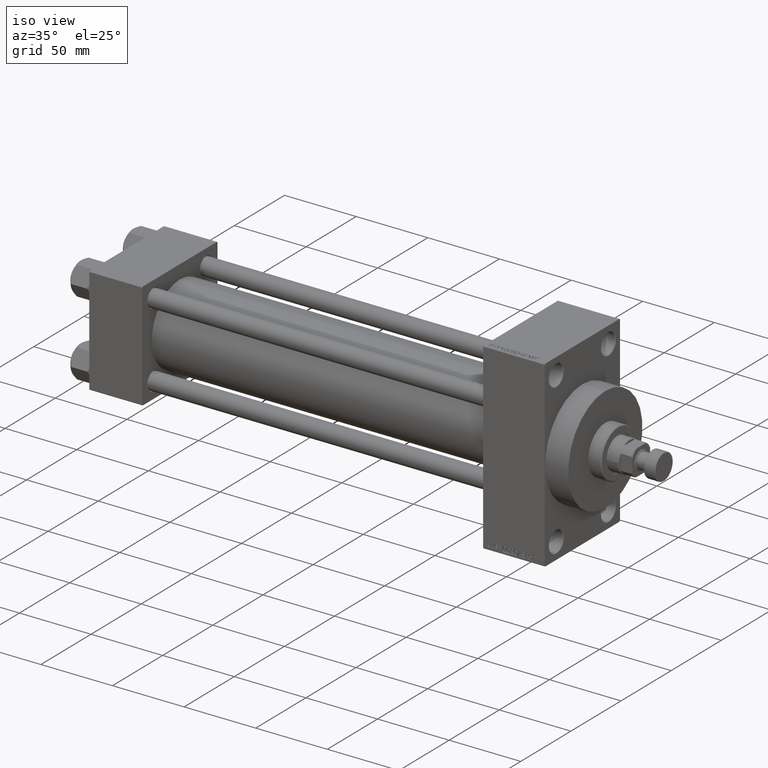
[diagram: clean part render]
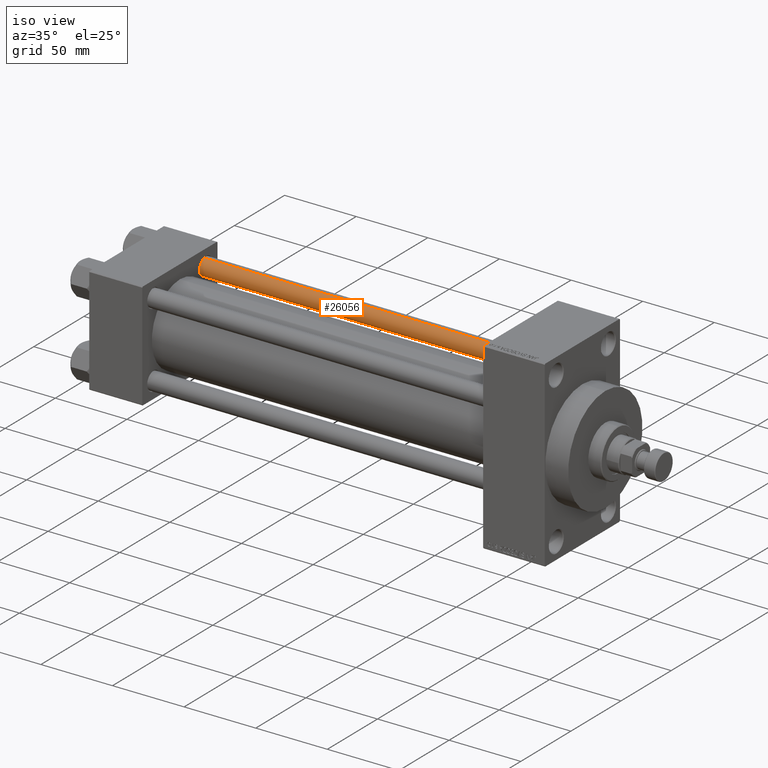
[diagram: same view with one face highlighted and labeled with its STEP entity id]
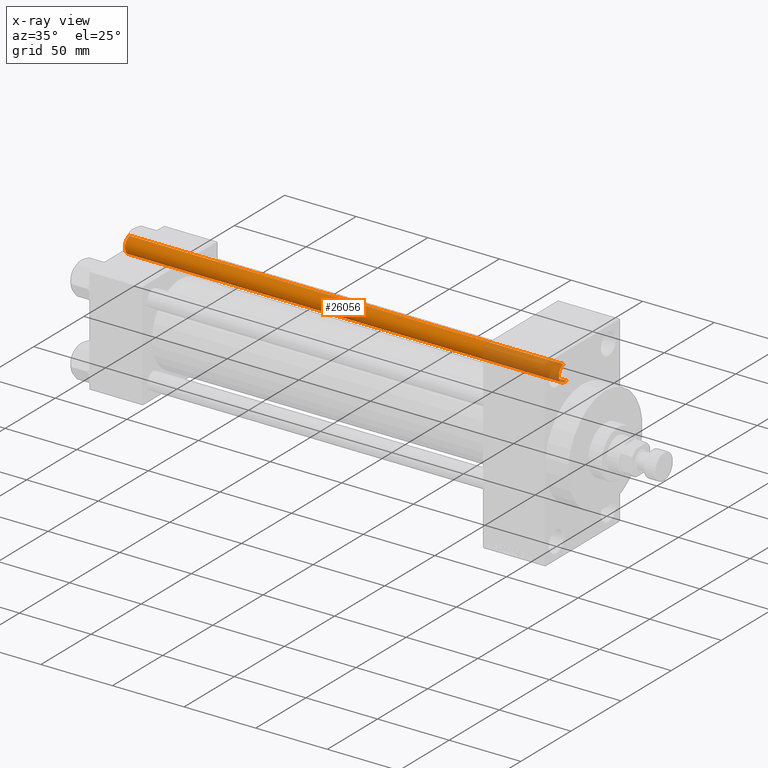
[diagram: x-ray of the same camera — body ghosted, the highlighted face saturated]
A machine part, iso view. The second image highlights one B-rep face of the part: STEP entity #26056.
The next image is the same camera in x-ray: the body ghosted, the highlighted face saturated — about 18% of this face is hidden behind the body in this view.
In plain terms, the highlighted cylindrical surface (edge-blend (fillet) strip) has radius 6 mm, axis along (-1, -0, 0).
Its self-contained STEP definition (entity closure, byte-faithful):
#401 = ORIENTED_EDGE ( 'NONE', *, *, #38745, .F. ) ;
#1368 = DIRECTION ( 'NONE',  ( 0.000000000000000000, 0.000000000000000000, -1.000000000000000000 ) ) ;
#1606 = DIRECTION ( 'NONE',  ( 1.000000000000000000, 0.000000000000000000, 0.000000000000000000 ) ) ;
#1735 = DIRECTION ( 'NONE',  ( -0.000000000000000000, -0.000000000000000000, -1.000000000000000000 ) ) ;
#3666 = FACE_OUTER_BOUND ( 'NONE', #38134, .T. ) ;
#5835 = CARTESIAN_POINT ( 'NONE',  ( -6.000000000000000888, 0.000000000000000000, 304.0000000000000000 ) ) ;
#6023 = DIRECTION ( 'NONE',  ( -0.000000000000000000, -0.000000000000000000, -1.000000000000000000 ) ) ;
#8108 = CARTESIAN_POINT ( 'NONE',  ( -6.000000000000000888, 0.000000000000000000, 0.4999999999999449329 ) ) ;
#8515 = DIRECTION ( 'NONE',  ( -0.000000000000000000, -0.000000000000000000, 1.000000000000000000 ) ) ;
#8876 = CIRCLE ( 'NONE', #35847, 6.000000000000000888 ) ;
#11082 = AXIS2_PLACEMENT_3D ( 'NONE', #44172, #44405, #26089 ) ;
#13277 = CARTESIAN_POINT ( 'NONE',  ( 6.000000000000000888, 7.347880794884120722E-16, 304.0000000000000000 ) ) ;
#14342 = AXIS2_PLACEMENT_3D ( 'NONE', #19858, #8515, #26361 ) ;
#14532 = CARTESIAN_POINT ( 'NONE',  ( -6.000000000000000888, 0.000000000000000000, 303.5000000000000000 ) ) ;
#16298 = VERTEX_POINT ( 'NONE', #8108 ) ;
#19858 = CARTESIAN_POINT ( 'NONE',  ( 0.000000000000000000, 0.000000000000000000, 0.4999999999999449329 ) ) ;
#19963 = CARTESIAN_POINT ( 'NONE',  ( 0.000000000000000000, 0.000000000000000000, 303.5000000000000000 ) ) ;
#24122 = LINE ( 'NONE', #13277, #35940 ) ;
#25854 = CYLINDRICAL_SURFACE ( 'NONE', #11082, 6.000000000000000888 ) ;
#26056 = ADVANCED_FACE ( 'NONE', ( #3666 ), #25854, .T. ) ;
#26089 = DIRECTION ( 'NONE',  ( -1.000000000000000000, 0.000000000000000000, 0.000000000000000000 ) ) ;
#26361 = DIRECTION ( 'NONE',  ( 1.000000000000000000, 0.000000000000000000, 0.000000000000000000 ) ) ;
#28287 = VERTEX_POINT ( 'NONE', #44135 ) ;
#31237 = ORIENTED_EDGE ( 'NONE', *, *, #35214, .T. ) ;
#33232 = VERTEX_POINT ( 'NONE', #44972 ) ;
#35110 = CIRCLE ( 'NONE', #14342, 6.000000000000000888 ) ;
#35214 = EDGE_CURVE ( 'NONE', #33232, #45773, #8876, .T. ) ;
#35847 = AXIS2_PLACEMENT_3D ( 'NONE', #19963, #1368, #1606 ) ;
#35940 = VECTOR ( 'NONE', #6023, 1000.000000000000000 ) ;
#38134 = EDGE_LOOP ( 'NONE', ( #401, #31237, #43778, #47232 ) ) ;
#38202 = EDGE_CURVE ( 'NONE', #16298, #28287, #35110, .T. ) ;
#38223 = EDGE_CURVE ( 'NONE', #45773, #16298, #38408, .T. ) ;
#38408 = LINE ( 'NONE', #5835, #38997 ) ;
#38745 = EDGE_CURVE ( 'NONE', #33232, #28287, #24122, .T. ) ;
#38997 = VECTOR ( 'NONE', #1735, 1000.000000000000000 ) ;
#43778 = ORIENTED_EDGE ( 'NONE', *, *, #38223, .T. ) ;
#44135 = CARTESIAN_POINT ( 'NONE',  ( 6.000000000000000888, 7.347880794884120722E-16, 0.4999999999999449329 ) ) ;
#44172 = CARTESIAN_POINT ( 'NONE',  ( 0.000000000000000000, 0.000000000000000000, 304.0000000000000000 ) ) ;
#44405 = DIRECTION ( 'NONE',  ( -0.000000000000000000, -0.000000000000000000, -1.000000000000000000 ) ) ;
#44972 = CARTESIAN_POINT ( 'NONE',  ( 6.000000000000000888, 7.347880794884120722E-16, 303.5000000000000000 ) ) ;
#45773 = VERTEX_POINT ( 'NONE', #14532 ) ;
#47232 = ORIENTED_EDGE ( 'NONE', *, *, #38202, .T. ) ;